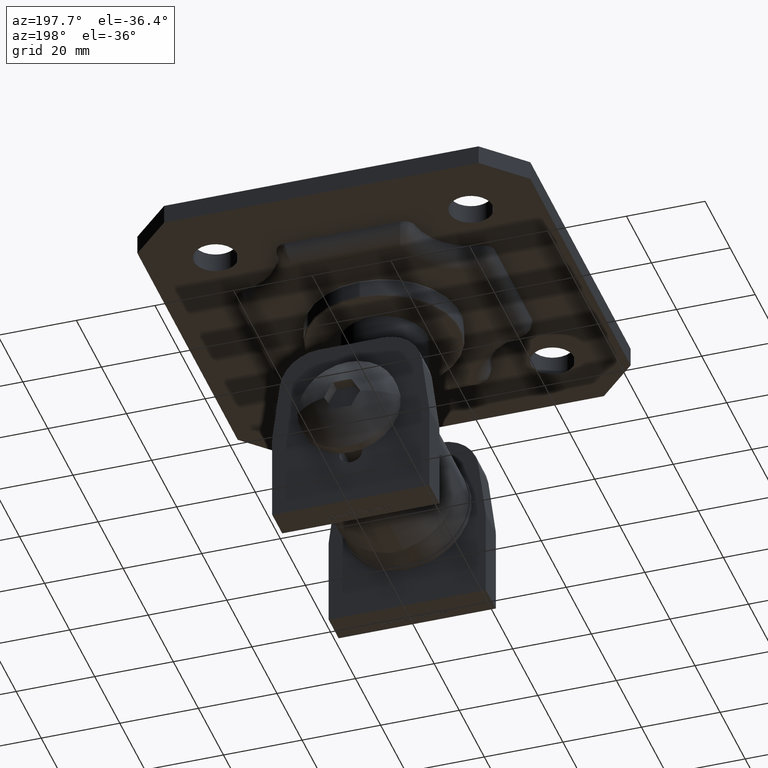
[diagram: clean part render]
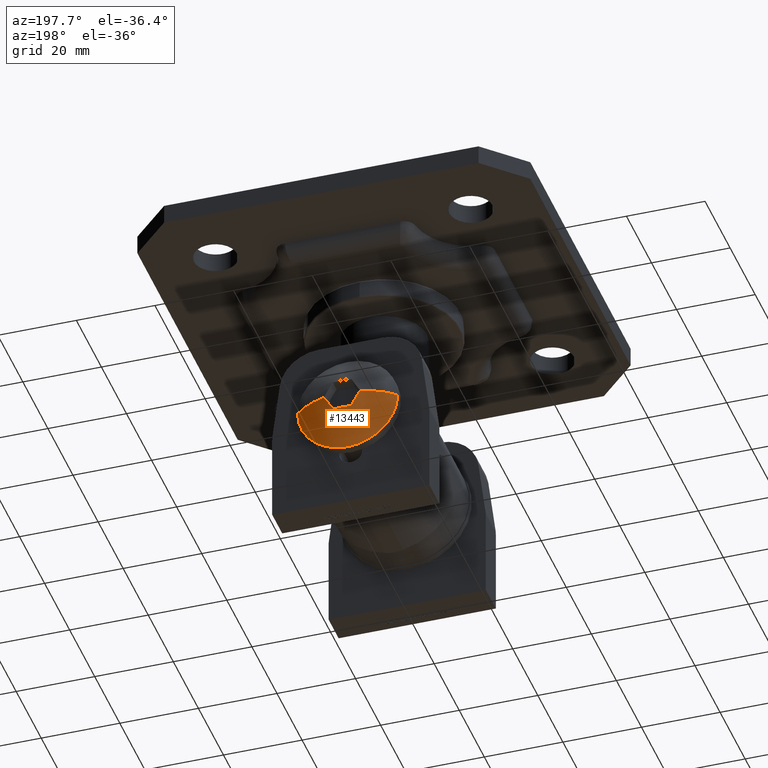
[diagram: same view with one face highlighted and labeled with its STEP entity id]
A machine part, auxiliary view. The second image highlights one B-rep face of the part: STEP entity #13443.
In plain terms, the highlighted spherical surface has radius 18.7562 mm.
Its self-contained STEP definition (entity closure, byte-faithful):
#935 = AXIS2_PLACEMENT_3D ( 'NONE', #1565, #13634, #1494 ) ;
#1005 = CARTESIAN_POINT ( 'NONE',  ( -2.309401076758502900, 26.92240728620149800, -3.999999999999998200 ) ) ;
#1146 = DIRECTION ( 'NONE',  ( 0.0000000000000000000, 0.0000000000000000000, 1.000000000000000000 ) ) ;
#1349 = CIRCLE ( 'NONE', #14135, 18.32476231939994400 ) ;
#1494 = DIRECTION ( 'NONE',  ( 0.0000000000000000000, 0.0000000000000000000, -1.000000000000000000 ) ) ;
#1565 = CARTESIAN_POINT ( 'NONE',  ( 0.0000000000000000000, 22.50000000000000000, 0.0000000000000000000 ) ) ;
#1620 = ORIENTED_EDGE ( 'NONE', *, *, #2210, .F. ) ;
#1738 = CARTESIAN_POINT ( 'NONE',  ( 4.618802153517006700, 26.92240728620149800, -8.673617379884035500E-016 ) ) ;
#2210 = EDGE_CURVE ( 'NONE', #6743, #7747, #5575, .T. ) ;
#2424 = AXIS2_PLACEMENT_3D ( 'NONE', #3178, #9818, #12464 ) ;
#2476 = EDGE_CURVE ( 'NONE', #15008, #9633, #1349, .T. ) ;
#2533 = CARTESIAN_POINT ( 'NONE',  ( 0.0000000000000000000, 8.743750000000002100, 0.0000000000000000000 ) ) ;
#3178 = CARTESIAN_POINT ( 'NONE',  ( -1.502314598737159800E-015, 8.743750000000002100, -3.999999999999999100 ) ) ;
#3694 = CIRCLE ( 'NONE', #935, 12.75000000000000000 ) ;
#3812 = ORIENTED_EDGE ( 'NONE', *, *, #13384, .F. ) ;
#4350 = AXIS2_PLACEMENT_3D ( 'NONE', #7805, #11865, #7758 ) ;
#4824 = DIRECTION ( 'NONE',  ( 1.000000000000000000, 0.0000000000000000000, -1.224646799147353200E-016 ) ) ;
#4900 = AXIS2_PLACEMENT_3D ( 'NONE', #2533, #11973, #5222 ) ;
#5222 = DIRECTION ( 'NONE',  ( -1.000000000000000000, 0.0000000000000000000, 0.0000000000000000000 ) ) ;
#5550 = CARTESIAN_POINT ( 'NONE',  ( -12.75000000000000200, 22.50000000000000000, 1.561424668912875300E-015 ) ) ;
#5575 = CIRCLE ( 'NONE', #6332, 18.75624999999999800 ) ;
#5902 = EDGE_LOOP ( 'NONE', ( #1620, #3812, #13972, #9329, #11708, #11000, #15277 ) ) ;
#6174 = EDGE_CURVE ( 'NONE', #9633, #15246, #8353, .T. ) ;
#6251 = CARTESIAN_POINT ( 'NONE',  ( 2.309401076758502000, 26.92240728620149800, -4.000000000000000000 ) ) ;
#6332 = AXIS2_PLACEMENT_3D ( 'NONE', #12779, #7470, #4824 ) ;
#6743 = VERTEX_POINT ( 'NONE', #16390 ) ;
#6749 = FACE_OUTER_BOUND ( 'NONE', #5902, .T. ) ;
#7470 = DIRECTION ( 'NONE',  ( 1.224646799147353200E-016, -0.0000000000000000000, 1.000000000000000000 ) ) ;
#7747 = VERTEX_POINT ( 'NONE', #5550 ) ;
#7758 = DIRECTION ( 'NONE',  ( -0.4999999999999998900, 7.951905156651624200E-015, 0.8660254037844387100 ) ) ;
#7805 = CARTESIAN_POINT ( 'NONE',  ( -3.464101615137754400, 8.743750000000002100, -1.999999999999999600 ) ) ;
#7813 = CIRCLE ( 'NONE', #4350, 18.32476231939994400 ) ;
#7984 = CARTESIAN_POINT ( 'NONE',  ( 0.0000000000000000000, 22.50000000000000000, 0.0000000000000000000 ) ) ;
#8353 = CIRCLE ( 'NONE', #2424, 18.32476231939994100 ) ;
#9329 = ORIENTED_EDGE ( 'NONE', *, *, #2476, .F. ) ;
#9633 = VERTEX_POINT ( 'NONE', #6251 ) ;
#9745 = CARTESIAN_POINT ( 'NONE',  ( 0.0000000000000000000, 22.50000000000000000, -12.75000000000000000 ) ) ;
#9818 = DIRECTION ( 'NONE',  ( 3.755786496842900000E-016, 0.0000000000000000000, 1.000000000000000000 ) ) ;
#10294 = EDGE_CURVE ( 'NONE', #15008, #15846, #10812, .T. ) ;
#10316 = CIRCLE ( 'NONE', #14936, 12.75000000000000000 ) ;
#10414 = EDGE_CURVE ( 'NONE', #7747, #15875, #3694, .T. ) ;
#10561 = DIRECTION ( 'NONE',  ( 1.000000000000000000, 0.0000000000000000000, 0.0000000000000000000 ) ) ;
#10812 = CIRCLE ( 'NONE', #4900, 18.75624999999999800 ) ;
#11000 = ORIENTED_EDGE ( 'NONE', *, *, #14438, .F. ) ;
#11199 = DIRECTION ( 'NONE',  ( -0.8660254037844384900, -0.0000000000000000000, 0.5000000000000003300 ) ) ;
#11708 = ORIENTED_EDGE ( 'NONE', *, *, #10294, .T. ) ;
#11865 = DIRECTION ( 'NONE',  ( 0.8660254037844387100, 0.0000000000000000000, 0.5000000000000000000 ) ) ;
#11973 = DIRECTION ( 'NONE',  ( 0.0000000000000000000, 0.0000000000000000000, -1.000000000000000000 ) ) ;
#12220 = CARTESIAN_POINT ( 'NONE',  ( 12.75000000000000200, 22.50000000000000000, 0.0000000000000000000 ) ) ;
#12464 = DIRECTION ( 'NONE',  ( -1.000000000000000000, 1.240118542287336800E-014, 3.786621503167441000E-016 ) ) ;
#12644 = SPHERICAL_SURFACE ( 'NONE', #13957, 18.75624999999999800 ) ;
#12779 = CARTESIAN_POINT ( 'NONE',  ( 0.0000000000000000000, 8.743750000000002100, 0.0000000000000000000 ) ) ;
#13349 = DIRECTION ( 'NONE',  ( -0.0000000000000000000, -1.000000000000000000, -0.0000000000000000000 ) ) ;
#13384 = EDGE_CURVE ( 'NONE', #15246, #6743, #7813, .T. ) ;
#13443 = ADVANCED_FACE ( 'NONE', ( #6749 ), #12644, .T. ) ;
#13634 = DIRECTION ( 'NONE',  ( -0.0000000000000000000, -1.000000000000000000, -0.0000000000000000000 ) ) ;
#13957 = AXIS2_PLACEMENT_3D ( 'NONE', #15712, #1146, #10561 ) ;
#13972 = ORIENTED_EDGE ( 'NONE', *, *, #6174, .F. ) ;
#14003 = DIRECTION ( 'NONE',  ( -0.5000000000000003300, 1.240118542287336700E-014, -0.8660254037844384900 ) ) ;
#14135 = AXIS2_PLACEMENT_3D ( 'NONE', #16506, #11199, #14003 ) ;
#14438 = EDGE_CURVE ( 'NONE', #15875, #15846, #10316, .T. ) ;
#14936 = AXIS2_PLACEMENT_3D ( 'NONE', #7984, #13349, #17414 ) ;
#15008 = VERTEX_POINT ( 'NONE', #1738 ) ;
#15246 = VERTEX_POINT ( 'NONE', #1005 ) ;
#15277 = ORIENTED_EDGE ( 'NONE', *, *, #10414, .F. ) ;
#15712 = CARTESIAN_POINT ( 'NONE',  ( 0.0000000000000000000, 8.743750000000002100, 0.0000000000000000000 ) ) ;
#15846 = VERTEX_POINT ( 'NONE', #12220 ) ;
#15875 = VERTEX_POINT ( 'NONE', #9745 ) ;
#16390 = CARTESIAN_POINT ( 'NONE',  ( -4.618802153517005800, 26.92240728620149800, 0.0000000000000000000 ) ) ;
#16506 = CARTESIAN_POINT ( 'NONE',  ( 3.464101615137753900, 8.743750000000002100, -2.000000000000001300 ) ) ;
#17414 = DIRECTION ( 'NONE',  ( 0.0000000000000000000, 0.0000000000000000000, -1.000000000000000000 ) ) ;